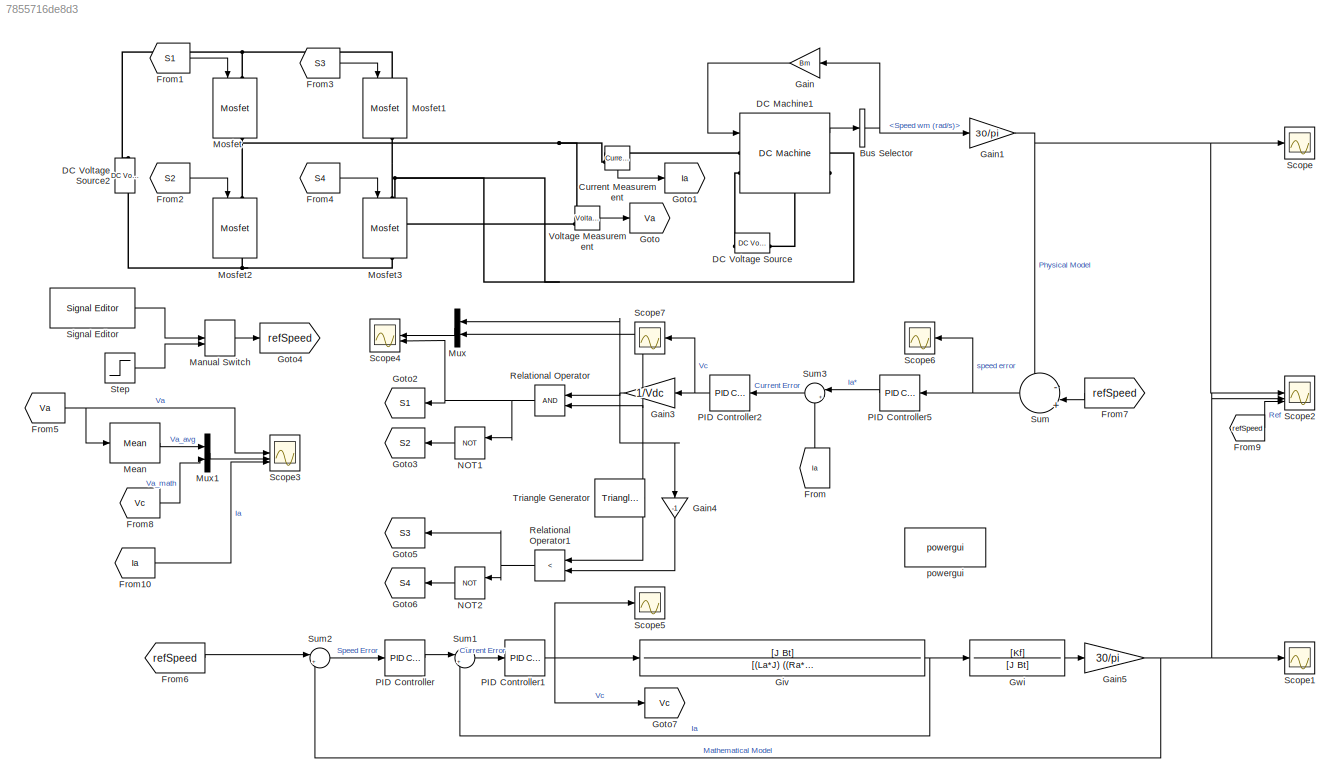
MODEL slx_7855716de8d3
KIND model
CONFIG AbsTol = auto
CONFIG EnableMultiTasking = off
CONFIG FixedStep = auto
CONFIG MaxStep = auto
CONFIG MinStep = auto
CONFIG RelTol = 1e-3
CONFIG SampleTimeConstraint = Unconstrained
CONFIG SolverName = ode23t
CONFIG StartTime = 0.0
CONFIG StopTime = 7
BLOCK [BusSelector] Bus Selector
  OutputSignals = Speed wm (rad/s)
BLOCK [Reference] Current Measurement  REF=spsCurrentMeasurementLib/Current Measurement
  LibrarySourceBlock = sps_lib/Sensors and Measurements/Current Measurement
  NameLocation = top
  SourceBlock = spsCurrentMeasurementLib/Current Measurement
  SourceType = Current Measurement
  UserDataPersistent = on
BLOCK [Reference] DC Machine1  REF=spsDCMachineLib/DC Machine
  LibrarySourceBlock = sps_lib/Electrical Machines/DC Machine
  SourceBlock = spsDCMachineLib/DC Machine
  SourceType = DC machine
BLOCK [Reference] DC Voltage Source  REF=spsDCVoltageSourceLib/DC Voltage Source
  LibrarySourceBlock = sps_lib/Sources/DC Voltage Source
  NameLocation = right
  SourceBlock = spsDCVoltageSourceLib/DC Voltage Source
  SourceType = DC Voltage Source
BLOCK [Reference] DC Voltage Source2  REF=spsDCVoltageSourceLib/DC Voltage Source
  LibrarySourceBlock = sps_lib/Sources/DC Voltage Source
  SourceBlock = spsDCVoltageSourceLib/DC Voltage Source
  SourceType = DC Voltage Source
BLOCK [From] From
  GotoTag = Ia
  NameLocation = right
BLOCK [From] From1
  GotoTag = S1
  NameLocation = top
BLOCK [From] From10
  GotoTag = Ia
BLOCK [From] From2
  GotoTag = S2
  NameLocation = top
BLOCK [From] From3
  GotoTag = S3
  NameLocation = top
BLOCK [From] From4
  GotoTag = S4
  NameLocation = top
BLOCK [From] From5
  GotoTag = Va
BLOCK [From] From6
  GotoTag = refSpeed
BLOCK [From] From7
  GotoTag = refSpeed
  NameLocation = top
BLOCK [From] From8
  GotoTag = Vc
BLOCK [From] From9
  GotoTag = refSpeed
BLOCK [Gain] Gain
  Gain = Bm
  NameLocation = top
BLOCK [Gain] Gain1
  Gain = 30/pi
BLOCK [Gain] Gain3
  Gain = 1/Vdc
  NameLocation = top
BLOCK [Gain] Gain4
  Gain = -1
  NameLocation = left
BLOCK [Gain] Gain5
  Gain = 30/pi
BLOCK [TransferFcn] Giv
  Denominator = [(La*J) ((Ra*J)+(Bt*La)) (Ra*Bt+Kf^2) ]
  Numerator = [J Bt]
BLOCK [Goto] Goto
  GotoTag = Va
BLOCK [Goto] Goto1
  GotoTag = Ia
BLOCK [Goto] Goto2
  GotoTag = S1
  NameLocation = top
BLOCK [Goto] Goto3
  GotoTag = S2
  NameLocation = top
BLOCK [Goto] Goto4
  GotoTag = refSpeed
BLOCK [Goto] Goto5
  GotoTag = S3
  NameLocation = top
BLOCK [Goto] Goto6
  GotoTag = S4
  NameLocation = top
BLOCK [Goto] Goto7
  GotoTag = Vc
BLOCK [TransferFcn] Gwi
  Denominator = [J Bt]
  Numerator = [Kf]
BLOCK [ManualSwitch] Manual Switch
  CurrentSetting = 0
BLOCK [Reference] Mean  REF=spsMeanLib/Mean
  LibrarySourceBlock = sps_lib/Sensors and Measurements/Mean
  SourceBlock = spsMeanLib/Mean
  SourceType = Mean
BLOCK [Reference] Mosfet  REF=spsMosfetLib/Mosfet
  LibrarySourceBlock = sps_lib/Power Electronics/Mosfet
  NameLocation = left
  SourceBlock = spsMosfetLib/Mosfet
  SourceType = Mosfet
BLOCK [Reference] Mosfet1  REF=spsMosfetLib/Mosfet
  LibrarySourceBlock = sps_lib/Power Electronics/Mosfet
  NameLocation = left
  SourceBlock = spsMosfetLib/Mosfet
  SourceType = Mosfet
BLOCK [Reference] Mosfet2  REF=spsMosfetLib/Mosfet
  LibrarySourceBlock = sps_lib/Power Electronics/Mosfet
  NameLocation = left
  SourceBlock = spsMosfetLib/Mosfet
  SourceType = Mosfet
BLOCK [Reference] Mosfet3  REF=spsMosfetLib/Mosfet
  LibrarySourceBlock = sps_lib/Power Electronics/Mosfet
  NameLocation = left
  SourceBlock = spsMosfetLib/Mosfet
  SourceType = Mosfet
BLOCK [Mux] Mux
  DisplayOption = bar
  Inputs = 2
  NameLocation = top
BLOCK [Mux] Mux1
  DisplayOption = bar
  Inputs = 2
BLOCK [Logic] NOT1
  AllPortsSameDT = off
  IconShape = distinctive
  NameLocation = top
  Operator = NOT
  OutDataTypeStr = boolean
BLOCK [Logic] NOT2
  AllPortsSameDT = off
  IconShape = distinctive
  NameLocation = top
  Operator = NOT
  OutDataTypeStr = boolean
BLOCK [Reference] PID Controller  REF=slpidlib/PID Controller
  LibrarySourceBlock = simulink/Continuous/PID Controller
  SourceBlock = slpidlib/PID Controller
  SourceType = PID 1dof
BLOCK [Reference] PID Controller1  REF=slpidlib/PID Controller
  LibrarySourceBlock = simulink/Continuous/PID Controller
  SourceBlock = slpidlib/PID Controller
  SourceType = PID 1dof
BLOCK [Reference] PID Controller2  REF=slpidlib/PID Controller
  LibrarySourceBlock = simulink/Continuous/PID Controller
  NameLocation = top
  SourceBlock = slpidlib/PID Controller
  SourceType = PID 1dof
BLOCK [Reference] PID Controller5  REF=slpidlib/PID Controller
  LibrarySourceBlock = simulink/Continuous/PID Controller
  NameLocation = top
  SourceBlock = slpidlib/PID Controller
  SourceType = PID 1dof
BLOCK [RelationalOperator] Relational Operator
  InputSameDT = off
  NameLocation = top
  OutDataTypeStr = boolean
  RndMeth = Simplest
BLOCK [RelationalOperator] Relational Operator1
  InputSameDT = off
  NameLocation = top
  Operator = <
  OutDataTypeStr = boolean
  RndMeth = Simplest
BLOCK [Scope] Scope
  Floating = off
  NumInputPorts = 1
  ScopeSpecificationString = Simulink.scopes.TimeScopeBlockCfg('CurrentConfiguration', extmgr.ConfigurationSet(extmgr.Configuration('Core','General UI',true),extmgr.Configuration('Core','Source UI',true),extmgr.Configuration('Sources','WiredSimulink',true),extmgr.Configuration('Visuals','Time Domain',true,'SerializedDisplays',{struct('MinYLimReal','-89.37261','MaxYLimReal','899.84642','YLabelReal','','MinYLimMag','0.00000','M...<+1388ch>
BLOCK [Scope] Scope1
  Floating = off
  NumInputPorts = 1
  ScopeSpecificationString = Simulink.scopes.TimeScopeBlockCfg('CurrentConfiguration', extmgr.ConfigurationSet(extmgr.Configuration('Core','General UI',true),extmgr.Configuration('Core','Source UI',true),extmgr.Configuration('Sources','WiredSimulink',true,'DataLoggingVariableName','ScopeData1'),extmgr.Configuration('Visuals','Time Domain',true,'SerializedDisplays',{struct('MinYLimReal','-357.85712','MaxYLimReal','1423.8654','...<+1464ch>
BLOCK [Scope] Scope2
  Floating = off
  NumInputPorts = 3
  ScopeSpecificationString = Simulink.scopes.TimeScopeBlockCfg('CurrentConfiguration', extmgr.ConfigurationSet(extmgr.Configuration('Core','General UI',true,'FigureColor',[0 0 0]),extmgr.Configuration('Core','Source UI',true),extmgr.Configuration('Sources','WiredSimulink',true,'DataLoggingVariableName','ScopeData2'),extmgr.Configuration('Visuals','Time Domain',true,'SerializedDisplays',{struct('MinYLimReal','-642.36773','MaxY...<+1754ch>
BLOCK [Scope] Scope3
  Floating = off
  NumInputPorts = 3
  ScopeSpecificationString = Simulink.scopes.TimeScopeBlockCfg('CurrentConfiguration', extmgr.ConfigurationSet(extmgr.Configuration('Core','General UI',true),extmgr.Configuration('Core','Source UI',true),extmgr.Configuration('Sources','WiredSimulink',true,'DataLoggingVariableName','ScopeData3'),extmgr.Configuration('Visuals','Time Domain',true,'SerializedDisplays',{struct('MinYLimReal','-300.01859','MaxYLimReal','300.00209','...<+2801ch>
BLOCK [Scope] Scope4
  Floating = off
  NameLocation = top
  NumInputPorts = 2
  ScopeSpecificationString = Simulink.scopes.TimeScopeBlockCfg('CurrentConfiguration', extmgr.ConfigurationSet(extmgr.Configuration('Core','General UI',true),extmgr.Configuration('Core','Source UI',true),extmgr.Configuration('Sources','WiredSimulink',true,'DataLoggingVariableName','ScopeData4'),extmgr.Configuration('Visuals','Time Domain',true,'SerializedDisplays',{struct('MinYLimReal','-1.25','MaxYLimReal','1.25','YLabelReal...<+2062ch>
BLOCK [Scope] Scope5
  Floating = off
  NumInputPorts = 1
  ScopeSpecificationString = Simulink.scopes.TimeScopeBlockCfg('CurrentConfiguration', extmgr.ConfigurationSet(extmgr.Configuration('Core','General UI',true),extmgr.Configuration('Core','Source UI',true),extmgr.Configuration('Sources','WiredSimulink',true,'DataLoggingVariableName','ScopeData1'),extmgr.Configuration('Visuals','Time Domain',true,'SerializedDisplays',{struct('MinYLimReal','-162.18621','MaxYLimReal','18.02069','Y...<+1398ch>
BLOCK [Scope] Scope6
  Floating = off
  NameLocation = top
  NumInputPorts = 1
  ScopeSpecificationString = Simulink.scopes.TimeScopeBlockCfg('CurrentConfiguration', extmgr.ConfigurationSet(extmgr.Configuration('Core','General UI',true),extmgr.Configuration('Core','Source UI',true),extmgr.Configuration('Sources','WiredSimulink',true,'DataLoggingVariableName','ScopeData6'),extmgr.Configuration('Visuals','Time Domain',true,'SerializedDisplays',{struct('MinYLimReal','-905.11959','MaxYLimReal','1867.83406',...<+1388ch>
BLOCK [Scope] Scope7
  Floating = off
  NameLocation = top
  NumInputPorts = 1
  ScopeSpecificationString = Simulink.scopes.TimeScopeBlockCfg('CurrentConfiguration', extmgr.ConfigurationSet(extmgr.Configuration('Core','General UI',true),extmgr.Configuration('Core','Source UI',true),extmgr.Configuration('Sources','WiredSimulink',true,'DataLoggingVariableName','ScopeData7'),extmgr.Configuration('Visuals','Time Domain',true,'SerializedDisplays',{struct('MinYLimReal','25.7972','MaxYLimReal','157.31756','YLa...<+1411ch>
BLOCK [Reference] Signal Editor  REF=SignalEditorBlockLib/Signal Editor
  LibrarySourceBlock = simulink/Sources/Signal Editor
  SourceBlock = SignalEditorBlockLib/Signal Editor
  SourceType = SignalEditor
  UserDataPersistent = on
BLOCK [Step] Step
  After = -500
  SampleTime = 0
BLOCK [Sum] Sum
  Inputs = -||+|||
  NameLocation = top
BLOCK [Sum] Sum1
  Inputs = |+-
BLOCK [Sum] Sum2
  Inputs = |+-
BLOCK [Sum] Sum3
  Inputs = |+-
  NameLocation = top
BLOCK [Reference] Triangle Generator  REF=spsTriangleGeneratorLib/Triangle
Generator
  LibrarySourceBlock = sps_lib/Sources/Signal Generator Sources/Triangle\nGenerator
  NameLocation = top
  SourceBlock = spsTriangleGeneratorLib/Triangle\nGenerator
  SourceType = Triangle Generator
BLOCK [Reference] Voltage Measurement  REF=spsVoltageMeasurementLib/Voltage Measurement
  LibrarySourceBlock = sps_lib/Sensors and Measurements/Voltage Measurement
  SourceBlock = spsVoltageMeasurementLib/Voltage Measurement
  SourceType = Voltage Measurement
  UserDataPersistent = on
BLOCK [Reference] powergui  REF=sps_lib/powergui
  Priority = 1
  SourceBlock = sps_lib/powergui
  SourceType = PSB option menu block
NET Bus Selector:1 -> Gain1:1, Gain:1
LINE Current Measurement:1 -> Goto1:1
LINE DC Machine1:1 -> Bus Selector:1
LINE From10:1 -> Scope3:3
LINE From1:1 -> Mosfet:1
LINE From2:1 -> Mosfet2:1
LINE From3:1 -> Mosfet1:1
LINE From4:1 -> Mosfet3:1
NET From5:1 -> Mean:1, Scope3:1
LINE From6:1 -> Sum2:1
LINE From7:1 -> Sum:2
LINE From8:1 -> Mux1:2
LINE From9:1 -> Scope2:3
LINE From:1 -> Sum3:2
NET Gain1:1 -> Scope2:1, Scope:1, Sum:1
NET Gain3:1 -> Gain4:1, Mux:1, Relational Operator:1
LINE Gain4:1 -> Relational Operator1:2
NET Gain5:1 -> Scope1:1, Scope2:2, Sum2:2
LINE Gain:1 -> DC Machine1:1
NET Giv:1 -> Gwi:1, Sum1:2
LINE Gwi:1 -> Gain5:1
LINE Manual Switch:1 -> Goto4:1
LINE Mean:1 -> Mux1:1
LINE Mux1:1 -> Scope3:2
LINE Mux:1 -> Scope4:1
LINE NOT1:1 -> Goto3:1
LINE NOT2:1 -> Goto6:1
NET PID Controller1:1 -> Giv:1, Goto7:1, Scope5:1
NET PID Controller2:1 -> Gain3:1, Scope7:1
LINE PID Controller5:1 -> Sum3:1
LINE PID Controller:1 -> Sum1:1
NET Relational Operator1:1 -> Goto5:1, NOT2:1
NET Relational Operator:1 -> Goto2:1, NOT1:1, Scope4:2
LINE Signal Editor:1 -> Manual Switch:1
LINE Step:1 -> Manual Switch:2
LINE Sum1:1 -> PID Controller1:1
LINE Sum2:1 -> PID Controller:1
LINE Sum3:1 -> PID Controller2:1
NET Sum:1 -> PID Controller5:1, Scope6:1
NET Triangle Generator:1 -> Mux:2, Relational Operator1:1, Relational Operator:2
LINE Voltage Measurement:1 -> Goto:1
PNET net1: Current Measurement:LConn1 -- Mosfet2:LConn1 -- Mosfet:RConn1 -- Voltage Measurement:LConn1
PLINE Current Measurement:RConn1 -- DC Machine1:LConn1
PLINE DC Machine1:LConn2 -- DC Voltage Source:RConn1
PNET net2: DC Machine1:RConn1 -- Mosfet1:RConn1 -- Mosfet3:LConn1 -- Voltage Measurement:LConn2
PLINE DC Machine1:RConn2 -- DC Voltage Source:LConn1
PNET net3: DC Voltage Source2:LConn1 -- Mosfet2:RConn1 -- Mosfet3:RConn1
PNET net4: DC Voltage Source2:RConn1 -- Mosfet1:LConn1 -- Mosfet:LConn1
note: NET lines group one-source signal fan-out (src -> all destinations, sorted); 1:1 wires keep LINE; PNET lines group multi-terminal physical nets as a canonical sorted terminal list (undirected conserving connections); 2-terminal nets keep the pairwise PLINE form
